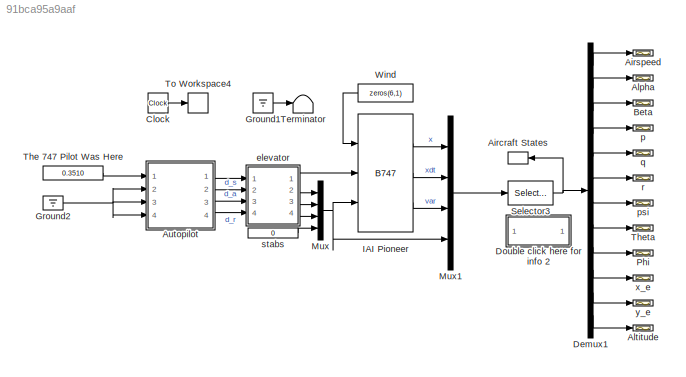
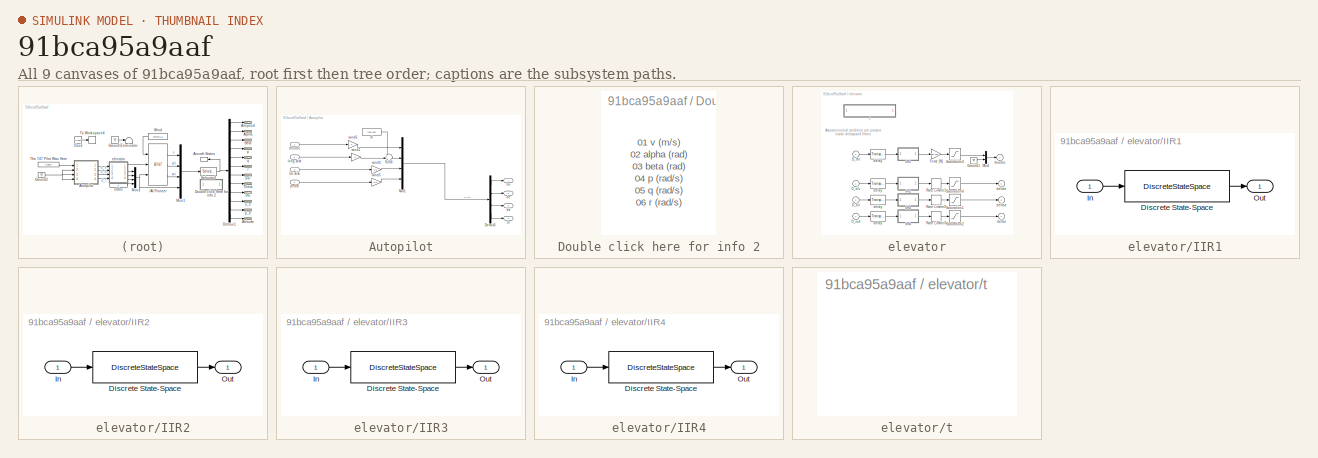
[diagram: thumbnail index - all 9 canvases of the model, root first then tree order]
MODEL slx_91bca95a9aaf
KIND model
CONFIG AbsTol = auto
CONFIG EnableMultiTasking = on
CONFIG FixedStep = auto
CONFIG MaxStep = auto
CONFIG MinStep = auto
CONFIG RelTol = 1e-3
CONFIG SampleTimeConstraint = Unconstrained
CONFIG Solver = VariableStepAuto
CONFIG SolverName = VariableStepAuto
CONFIG StartTime = 0.0
CONFIG StopTime = 30
BLOCK [Reference]  IAI Pioneer   REF=airlib/B747  (lib defined in mdl_00852699f85c, mdl_b3a2112ccc5d, +1 more)
  Ports = [3, 3]
  SourceBlock = airlib/B747
  SourceType = General Nonlinear Aircraft Model
BLOCK [ToWorkspace] Aircraft States
  Ports = [1]
  SampleTime = 0.05
  VariableName = x
BLOCK [Scope] Airspeed
  Floating = off
  NumInputPorts = 1
  Ports = [1]
  ScopeSpecificationString = Simulink.scopes.TimeScopeBlockCfg('CurrentConfiguration', extmgr.ConfigurationSet(extmgr.Configuration('Core','General UI',true),extmgr.Configuration('Core','Source UI',true),extmgr.Configuration('Sources','WiredSimulink',true,'DataLoggingVariableName','ScopeData5','DataLoggingSaveFormat','StructureWithTime','DataLoggingLimitDataPoints',true,'DataLoggingDecimation','1','DataLoggingDecimateData',tr...<+1808ch>
BLOCK [Scope] Alpha
  Floating = off
  NumInputPorts = 1
  Ports = [1]
  ScopeSpecificationString = Simulink.scopes.TimeScopeBlockCfg('CurrentConfiguration', extmgr.ConfigurationSet(extmgr.Configuration('Core','General UI',true),extmgr.Configuration('Core','Source UI',true),extmgr.Configuration('Sources','WiredSimulink',true,'DataLoggingVariableName','ScopeData4','DataLoggingSaveFormat','StructureWithTime','DataLoggingLimitDataPoints',true,'DataLoggingDecimation','1','DataLoggingDecimateData',tr...<+1748ch>
BLOCK [Scope] Altitude
  Floating = off
  NumInputPorts = 1
  Ports = [1]
  ScopeSpecificationString = Simulink.scopes.TimeScopeBlockCfg('CurrentConfiguration', extmgr.ConfigurationSet(extmgr.Configuration('Core','General UI',true),extmgr.Configuration('Core','Source UI',true),extmgr.Configuration('Sources','WiredSimulink',true,'DataLoggingVariableName','ScopeData15','DataLoggingSaveFormat','StructureWithTime','DataLoggingLimitDataPoints',true,'DataLoggingDecimation','1','DataLoggingDecimateData',t...<+1880ch>
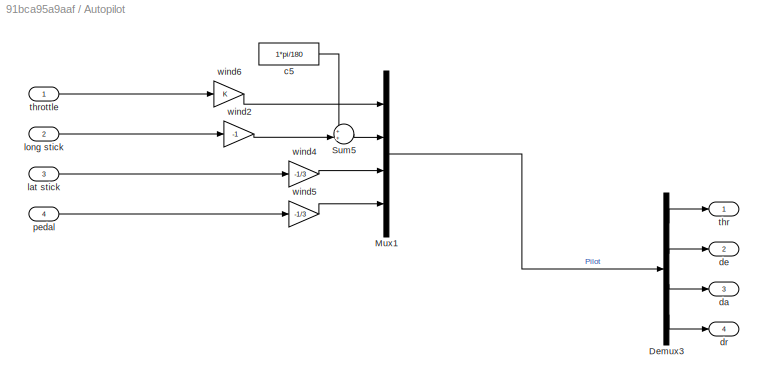
BLOCK [SubSystem] Autopilot
  Ports = [4, 4]
  RequestExecContextInheritance = off
BLOCK [Demux] Autopilot/Demux3
  Ports = [1, 4]
BLOCK [Mux] Autopilot/Mux1
  Ports = [4, 1]
BLOCK [Sum] Autopilot/Sum5
  IconShape = round
  Inputs = ++|
  Ports = [2, 1]
BLOCK [Constant] Autopilot/c5
  Value = 1*pi/180
BLOCK [Outport] Autopilot/da
  IconDisplay = Port number
  Port = 3
BLOCK [Outport] Autopilot/de
  IconDisplay = Port number
  Port = 2
BLOCK [Outport] Autopilot/dr
  IconDisplay = Port number
  Port = 4
BLOCK [Inport] Autopilot/lat stick
  IconDisplay = Port number
  Port = 3
BLOCK [Inport] Autopilot/long stick
  IconDisplay = Port number
  Port = 2
BLOCK [Inport] Autopilot/pedal
  IconDisplay = Port number
  Port = 4
BLOCK [Outport] Autopilot/thr
  IconDisplay = Port number
BLOCK [Inport] Autopilot/throttle
  IconDisplay = Port number
BLOCK [Gain] Autopilot/wind2
  Gain = -1
BLOCK [Gain] Autopilot/wind4
  Gain = -1/3
BLOCK [Gain] Autopilot/wind5
  Gain = -1/3
BLOCK [Gain] Autopilot/wind6
BLOCK [Scope] Beta
  Floating = off
  NumInputPorts = 1
  Ports = [1]
  ScopeSpecificationString = C++SS(StrPVP('Location','[912, 348, 1196, 534]'),StrPVP('Open','off'),StrPVP('TickLabels','OneTimeTick'),StrPVP('ZoomMode','on'),MxPVP('AxesTitles',53,'struct(''axes1'',''%<SignalLabel>'')'),StrPVP('Grid','on'),StrPVP('TimeRange','100             '),StrPVP('YMin','0'),StrPVP('YMax','250000'),StrPVP('SaveToWorkspace','off'),StrPVP('SaveName','ScopeData6'),StrPVP('DataFormat','StructureWithTime'),St...<+149ch>
BLOCK [Clock] Clock
BLOCK [Demux] Demux1
  Outputs = 12
  Ports = [1, 12]
BLOCK [SubSystem] Double click here for info 2
  Ports = []
  RequestExecContextInheritance = off
  ShowPortLabels = none
BLOCK [Ground] Ground1
BLOCK [Ground] Ground2
BLOCK [Mux] Mux
  Ports = [4, 1]
BLOCK [Mux] Mux1
  Inputs = [12 12 12 4]
  Ports = [4, 1]
BLOCK [Scope] Phi
  Floating = off
  NumInputPorts = 1
  Ports = [1]
  ScopeSpecificationString = C++SS(StrPVP('Location','[548, 406, 832, 592]'),StrPVP('Open','off'),StrPVP('TickLabels','OneTimeTick'),StrPVP('ZoomMode','on'),MxPVP('AxesTitles',53,'struct(''axes1'',''%<SignalLabel>'')'),StrPVP('Grid','on'),StrPVP('TimeRange','100             '),StrPVP('YMin','-0.0002446'),StrPVP('YMax','-0.0002438'),StrPVP('SaveToWorkspace','off'),StrPVP('SaveName','ScopeData12'),StrPVP('DataFormat','Structure...<+162ch>
BLOCK [Selector] Selector3
  IndexOptions = Index vector (dialog)
  Indices = 1:12
  InputPortWidth = 40
  OutputSizes = 1
  Ports = [1, 1]
BLOCK [Terminator] Terminator
BLOCK [Constant] The 747 Pilot Was Here
  Value = 0.3510
BLOCK [Scope] Theta
  Floating = off
  NumInputPorts = 1
  Ports = [1]
  ScopeSpecificationString = C++SS(StrPVP('Location','[962, 543, 1266, 737]'),StrPVP('Open','off'),StrPVP('TickLabels','OneTimeTick'),StrPVP('ZoomMode','on'),MxPVP('AxesTitles',53,'struct(''axes1'',''%<SignalLabel>'')'),StrPVP('Grid','on'),StrPVP('TimeRange','300'),StrPVP('YMin','0.0463'),StrPVP('YMax','0.0467'),StrPVP('SaveToWorkspace','off'),StrPVP('SaveName','ScopeData11'),StrPVP('DataFormat','StructureWithTime'),StrPVP('L...<+142ch>
BLOCK [ToWorkspace] To Workspace4
  Ports = [1]
  SampleTime = 0.05
  VariableName = t
BLOCK [Constant] Wind
  Value = zeros(6,1)
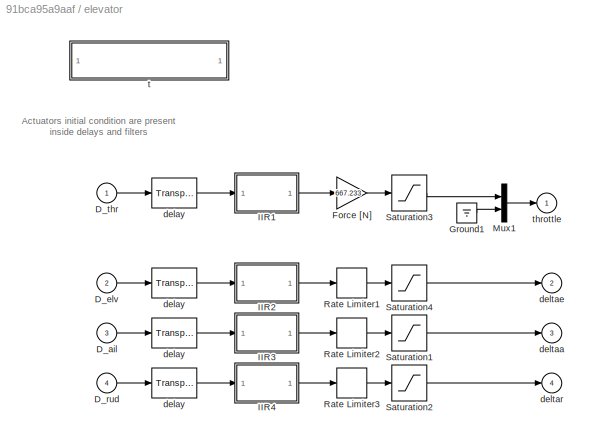
BLOCK [SubSystem] elevator
  Ports = [4, 4]
  RequestExecContextInheritance = off
  ShowPortLabels = none
BLOCK [TransportDelay] elevator/ delay
  DelayTime = 0.03
  InitialOutput = -1.71374e-004
  Ports = [1, 1]
BLOCK [TransportDelay] elevator/ delay 
  DelayTime = 0.03
  InitialOutput = 0.490154
  Ports = [1, 1]
BLOCK [Inport] elevator/D_ail
  IconDisplay = Port number
  Port = 3
BLOCK [Inport] elevator/D_elv
  IconDisplay = Port number
  Port = 2
BLOCK [Inport] elevator/D_rud
  IconDisplay = Port number
  Port = 4
BLOCK [Inport] elevator/D_thr
  IconDisplay = Port number
BLOCK [Gain] elevator/Force [N]
  Gain = 667.233
BLOCK [Ground] elevator/Ground1
BLOCK [SubSystem] elevator/IIR1
  Ports = [1, 1]
  RequestExecContextInheritance = off
BLOCK [DiscreteStateSpace] elevator/IIR1/Discrete State-Space
  A = A
  B = B
  C = C
  D = D
  InitialCondition = x0
  SampleTime = T
BLOCK [Inport] elevator/IIR1/In
  IconDisplay = Port number
BLOCK [Outport] elevator/IIR1/Out
  IconDisplay = Port number
BLOCK [SubSystem] elevator/IIR2
  Ports = [1, 1]
  RequestExecContextInheritance = off
BLOCK [DiscreteStateSpace] elevator/IIR2/Discrete State-Space
  A = A
  B = B
  C = C
  D = D
  InitialCondition = x0
  SampleTime = T
BLOCK [Inport] elevator/IIR2/In
  IconDisplay = Port number
BLOCK [Outport] elevator/IIR2/Out
  IconDisplay = Port number
BLOCK [SubSystem] elevator/IIR3
  Ports = [1, 1]
  RequestExecContextInheritance = off
BLOCK [DiscreteStateSpace] elevator/IIR3/Discrete State-Space
  A = A
  B = B
  C = C
  D = D
  InitialCondition = x0
  SampleTime = T
BLOCK [Inport] elevator/IIR3/In
  IconDisplay = Port number
BLOCK [Outport] elevator/IIR3/Out
  IconDisplay = Port number
BLOCK [SubSystem] elevator/IIR4
  Ports = [1, 1]
  RequestExecContextInheritance = off
BLOCK [DiscreteStateSpace] elevator/IIR4/Discrete State-Space
  A = A
  B = B
  C = C
  D = D
  InitialCondition = x0
  SampleTime = T
BLOCK [Inport] elevator/IIR4/In
  IconDisplay = Port number
BLOCK [Outport] elevator/IIR4/Out
  IconDisplay = Port number
BLOCK [Mux] elevator/Mux1
  Inputs = [1 5]
  Ports = [2, 1]
BLOCK [RateLimiter] elevator/Rate Limiter1
  FallingSlewLimit = -100*pi/180
  RisingSlewLimit = 100*pi/180
BLOCK [RateLimiter] elevator/Rate Limiter2
  FallingSlewLimit = -100*pi/180
  RisingSlewLimit = 100*pi/180
BLOCK [RateLimiter] elevator/Rate Limiter3
  FallingSlewLimit = -100*pi/180
  RisingSlewLimit = 100*pi/180
BLOCK [Saturate] elevator/Saturation1
  InputPortMap = u0
  LowerLimit = -20*pi/180
  Ports = [1, 1]
  UpperLimit = 20*pi/180
BLOCK [Saturate] elevator/Saturation2
  InputPortMap = u0
  LowerLimit = -20*pi/180
  Ports = [1, 1]
  UpperLimit = 20*pi/180
BLOCK [Saturate] elevator/Saturation3
  InputPortMap = u0
  LowerLimit = 0
  Ports = [1, 1]
  UpperLimit = 245440
BLOCK [Saturate] elevator/Saturation4
  InputPortMap = u0
  LowerLimit = -20*pi/180
  Ports = [1, 1]
  UpperLimit = 20*pi/180
BLOCK [TransportDelay] elevator/delay
  DelayTime = 0.03
  Ports = [1, 1]
BLOCK [TransportDelay] elevator/delay 
  DelayTime = 0.03
  Ports = [1, 1]
BLOCK [Outport] elevator/deltaa
  IconDisplay = Port number
  Port = 3
BLOCK [Outport] elevator/deltae
  IconDisplay = Port number
  Port = 2
BLOCK [Outport] elevator/deltar
  IconDisplay = Port number
  Port = 4
BLOCK [SubSystem] elevator/t
  OpenFcn = fdchelp actuatr
  Ports = []
  RequestExecContextInheritance = off
  ShowPortLabels = none
BLOCK [Outport] elevator/throttle
  IconDisplay = Port number
BLOCK [Scope] p
  Floating = off
  NumInputPorts = 1
  Ports = [1]
  ScopeSpecificationString = C++SS(StrPVP('Location','[912, 348, 1196, 534]'),StrPVP('Open','off'),StrPVP('TickLabels','OneTimeTick'),StrPVP('ZoomMode','on'),MxPVP('AxesTitles',53,'struct(''axes1'',''%<SignalLabel>'')'),StrPVP('Grid','on'),StrPVP('TimeRange','100             '),StrPVP('YMin','0'),StrPVP('YMax','250000'),StrPVP('SaveToWorkspace','off'),StrPVP('SaveName','ScopeData7'),StrPVP('DataFormat','StructureWithTime'),St...<+149ch>
BLOCK [Scope] psi
  Floating = off
  NumInputPorts = 1
  Ports = [1]
  ScopeSpecificationString = C++SS(StrPVP('Location','[912, 348, 1196, 534]'),StrPVP('Open','off'),StrPVP('TickLabels','OneTimeTick'),StrPVP('ZoomMode','on'),MxPVP('AxesTitles',53,'struct(''axes1'',''%<SignalLabel>'')'),StrPVP('Grid','on'),StrPVP('TimeRange','100             '),StrPVP('YMin','0'),StrPVP('YMax','250000'),StrPVP('SaveToWorkspace','off'),StrPVP('SaveName','ScopeData10'),StrPVP('DataFormat','StructureWithTime'),S...<+150ch>
BLOCK [Scope] q
  Floating = off
  NumInputPorts = 1
  Ports = [1]
  ScopeSpecificationString = C++SS(StrPVP('Location','[912, 348, 1196, 534]'),StrPVP('Open','off'),StrPVP('TickLabels','OneTimeTick'),StrPVP('ZoomMode','on'),MxPVP('AxesTitles',53,'struct(''axes1'',''%<SignalLabel>'')'),StrPVP('Grid','on'),StrPVP('TimeRange','100             '),StrPVP('YMin','0'),StrPVP('YMax','250000'),StrPVP('SaveToWorkspace','off'),StrPVP('SaveName','ScopeData8'),StrPVP('DataFormat','StructureWithTime'),St...<+149ch>
BLOCK [Scope] r
  Floating = off
  NumInputPorts = 1
  Ports = [1]
  ScopeSpecificationString = C++SS(StrPVP('Location','[912, 348, 1196, 534]'),StrPVP('Open','off'),StrPVP('TickLabels','OneTimeTick'),StrPVP('ZoomMode','on'),MxPVP('AxesTitles',53,'struct(''axes1'',''%<SignalLabel>'')'),StrPVP('Grid','on'),StrPVP('TimeRange','100             '),StrPVP('YMin','0'),StrPVP('YMax','250000'),StrPVP('SaveToWorkspace','off'),StrPVP('SaveName','ScopeData9'),StrPVP('DataFormat','StructureWithTime'),St...<+149ch>
BLOCK [Constant] stabs
  Value = 0
BLOCK [Scope] x_e
  Floating = off
  NumInputPorts = 1
  Ports = [1]
  ScopeSpecificationString = C++SS(StrPVP('Location','[912, 348, 1196, 534]'),StrPVP('Open','off'),StrPVP('TickLabels','OneTimeTick'),StrPVP('ZoomMode','on'),MxPVP('AxesTitles',53,'struct(''axes1'',''%<SignalLabel>'')'),StrPVP('Grid','on'),StrPVP('TimeRange','100             '),StrPVP('YMin','0'),StrPVP('YMax','250000'),StrPVP('SaveToWorkspace','off'),StrPVP('SaveName','ScopeData13'),StrPVP('DataFormat','StructureWithTime'),S...<+150ch>
BLOCK [Scope] y_e
  Floating = off
  NumInputPorts = 1
  Ports = [1]
  ScopeSpecificationString = C++SS(StrPVP('Location','[912, 348, 1196, 534]'),StrPVP('Open','off'),StrPVP('TickLabels','OneTimeTick'),StrPVP('ZoomMode','on'),MxPVP('AxesTitles',53,'struct(''axes1'',''%<SignalLabel>'')'),StrPVP('Grid','on'),StrPVP('TimeRange','100             '),StrPVP('YMin','0'),StrPVP('YMax','250000'),StrPVP('SaveToWorkspace','off'),StrPVP('SaveName','ScopeData14'),StrPVP('DataFormat','StructureWithTime'),S...<+150ch>
ANNOTATION Double click here for info 2: 01 v (m/s) 02 alpha (rad) 03 beta (rad) 04 p (rad/s) 05 q (rad/s) 06 r (rad/s) 07 psi (rad) 08 theta (rad) 09 phi (rad) 10 xe (m) 11 ye (m) 12 ze (m) 13 v dot (m/s2) 14 alpha dot (rad/s) 15 beta dot (rad/s) 16 p dot (rad/s2) 17 q dot (rad/s2) 18 r dot (rad/s2) 19 fi dot (rad/s) 20 theta dot (rad/s) 21 psi dot (rad/s) 22 xe dot (m/s) 23 ye dot (m/s) 24 ze dot (m/s) 25 u dot (m/s2) 26 v dot (m/s2) 2...<+209ch>
ANNOTATION elevator: Actuators initial condition are present inside delays and filters
LINE  IAI Pioneer :1 -> Mux1:1
LINE  IAI Pioneer :2 -> Mux1:2
LINE  IAI Pioneer :3 -> Mux1:3
LINE Autopilot/Demux3:1 -> Autopilot/thr:1
LINE Autopilot/Demux3:2 -> Autopilot/de:1
LINE Autopilot/Demux3:3 -> Autopilot/da:1
LINE Autopilot/Demux3:4 -> Autopilot/dr:1
LINE Autopilot/Mux1:1 -> Autopilot/Demux3:1
LINE Autopilot/Sum5:1 -> Autopilot/Mux1:2
LINE Autopilot/c5:1 -> Autopilot/Sum5:1
LINE Autopilot/lat stick:1 -> Autopilot/wind4:1
LINE Autopilot/long stick:1 -> Autopilot/wind2:1
LINE Autopilot/pedal:1 -> Autopilot/wind5:1
LINE Autopilot/throttle:1 -> Autopilot/wind6:1
LINE Autopilot/wind2:1 -> Autopilot/Sum5:2
LINE Autopilot/wind4:1 -> Autopilot/Mux1:3
LINE Autopilot/wind5:1 -> Autopilot/Mux1:4
LINE Autopilot/wind6:1 -> Autopilot/Mux1:1
LINE Autopilot:1 -> elevator:1
LINE Autopilot:2 -> elevator:2
LINE Autopilot:3 -> elevator:3
LINE Autopilot:4 -> elevator:4
LINE Clock:1 -> To Workspace4:1
LINE Demux1:1 -> Airspeed:1
LINE Demux1:10 -> x_e:1
LINE Demux1:11 -> y_e:1
LINE Demux1:12 -> Altitude:1
LINE Demux1:2 -> Alpha:1
LINE Demux1:3 -> Beta:1
LINE Demux1:4 -> p:1
LINE Demux1:5 -> q:1
LINE Demux1:6 -> r:1
LINE Demux1:7 -> psi:1
LINE Demux1:8 -> Theta:1
LINE Demux1:9 -> Phi:1
LINE Ground1:1 -> Terminator:1
NET Ground2:1 -> Autopilot:2, Autopilot:3, Autopilot:4
LINE Mux1:1 -> Selector3:1
NET Mux:1 ->  IAI Pioneer :3, Mux1:4
NET Selector3:1 -> Aircraft States:1, Demux1:1
LINE The 747 Pilot Was Here:1 -> Autopilot:1
LINE Wind:1 ->  IAI Pioneer :1
LINE elevator/ delay :1 -> elevator/IIR1:1
LINE elevator/ delay:1 -> elevator/IIR2:1
LINE elevator/D_ail:1 -> elevator/delay:1
LINE elevator/D_elv:1 -> elevator/ delay:1
LINE elevator/D_rud:1 -> elevator/delay :1
LINE elevator/D_thr:1 -> elevator/ delay :1
LINE elevator/Force [N]:1 -> elevator/Saturation3:1
LINE elevator/Ground1:1 -> elevator/Mux1:2
LINE elevator/IIR1/Discrete State-Space:1 -> elevator/IIR1/Out:1
LINE elevator/IIR1/In:1 -> elevator/IIR1/Discrete State-Space:1
LINE elevator/IIR1:1 -> elevator/Force [N]:1
LINE elevator/IIR2/Discrete State-Space:1 -> elevator/IIR2/Out:1
LINE elevator/IIR2/In:1 -> elevator/IIR2/Discrete State-Space:1
LINE elevator/IIR2:1 -> elevator/Rate Limiter1:1
LINE elevator/IIR3/Discrete State-Space:1 -> elevator/IIR3/Out:1
LINE elevator/IIR3/In:1 -> elevator/IIR3/Discrete State-Space:1
LINE elevator/IIR3:1 -> elevator/Rate Limiter2:1
LINE elevator/IIR4/Discrete State-Space:1 -> elevator/IIR4/Out:1
LINE elevator/IIR4/In:1 -> elevator/IIR4/Discrete State-Space:1
LINE elevator/IIR4:1 -> elevator/Rate Limiter3:1
LINE elevator/Mux1:1 -> elevator/throttle:1
LINE elevator/Rate Limiter1:1 -> elevator/Saturation4:1
LINE elevator/Rate Limiter2:1 -> elevator/Saturation1:1
LINE elevator/Rate Limiter3:1 -> elevator/Saturation2:1
LINE elevator/Saturation1:1 -> elevator/deltaa:1
LINE elevator/Saturation2:1 -> elevator/deltar:1
LINE elevator/Saturation3:1 -> elevator/Mux1:1
LINE elevator/Saturation4:1 -> elevator/deltae:1
LINE elevator/delay :1 -> elevator/IIR4:1
LINE elevator/delay:1 -> elevator/IIR3:1
LINE elevator:1 ->  IAI Pioneer :2
LINE elevator:2 -> Mux:1
LINE elevator:3 -> Mux:2
LINE elevator:4 -> Mux:3
LINE stabs:1 -> Mux:4
note: NET lines group one-source signal fan-out (src -> all destinations, sorted); 1:1 wires keep LINE
